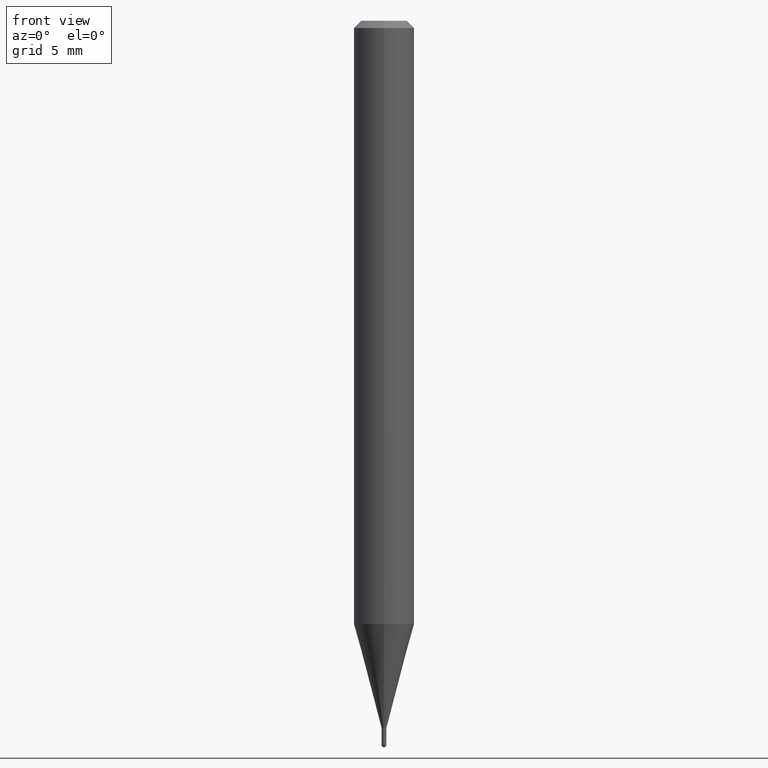
[diagram: clean part render]
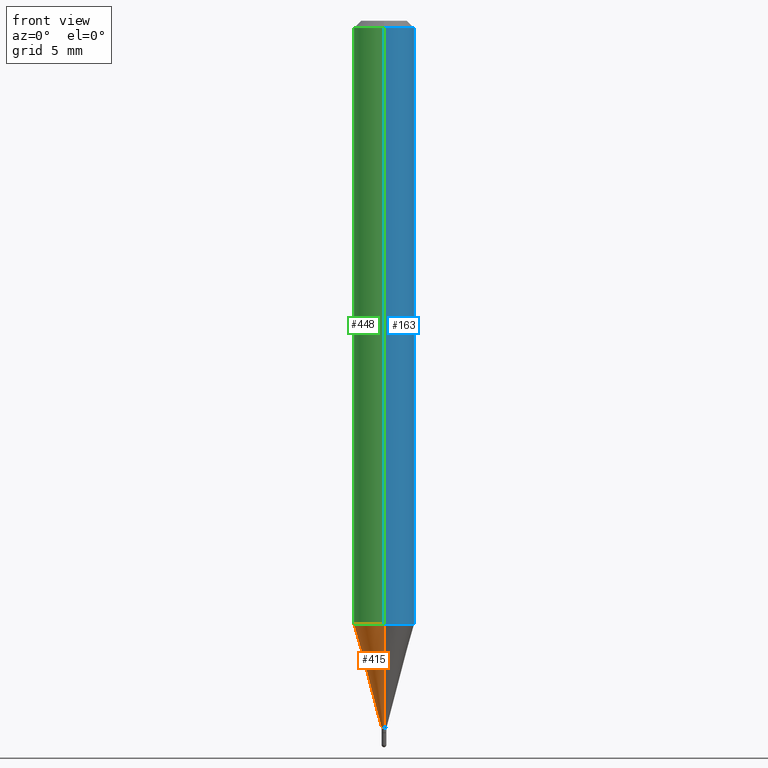
[diagram: same view with three faces highlighted in distinct colors, each labeled with its STEP entity id]
A machine part, front view with three faces highlighted in distinct colors.
Their STEP definitions:

[orange] entity #415 — the highlighted conical surface has half-angle 15 deg.
#2 = DIRECTION ( 'NONE',  ( -2.445665953977767409E-29, 3.491199011983142468E-15, 1.000000000000000000 ) ) ;
#3 = DIRECTION ( 'NONE',  ( -2.445665953977767409E-29, 3.491199011983142468E-15, 1.000000000000000000 ) ) ;
#15 = VECTOR ( 'NONE', #212, 39.37007874015748143 ) ;
#23 = VERTEX_POINT ( 'NONE', #161 ) ;
#40 = EDGE_LOOP ( 'NONE', ( #180, #449, #393, #467 ) ) ;
#65 = LINE ( 'NONE', #74, #372 ) ;
#74 = CARTESIAN_POINT ( 'NONE',  ( 3.552713678804019446E-17, 0.004999999999994829761, -1.459999999999999742 ) ) ;
#75 = EDGE_CURVE ( 'NONE', #416, #446, #160, .T. ) ;
#86 = CIRCLE ( 'NONE', #364, 0.004999999999999927246 ) ;
#94 = CARTESIAN_POINT ( 'NONE',  ( 2.398081733190667635E-16, 0.004999999999994829761, -1.459999999999999742 ) ) ;
#102 = DIRECTION ( 'NONE',  ( 1.839019923739600710E-15, 0.2588190451025250138, 0.9659258262890670910 ) ) ;
#110 = CARTESIAN_POINT ( 'NONE',  ( 3.045849690888821220E-29, -4.347963962202206812E-15, -1.245407078564789716 ) ) ;
#111 = EDGE_CURVE ( 'NONE', #23, #446, #369, .T. ) ;
#160 = CIRCLE ( 'NONE', #377, 0.06250000000000000000 ) ;
#161 = CARTESIAN_POINT ( 'NONE',  ( -3.491481338839511498E-17, -0.005000000000005024731, -1.459999999999999742 ) ) ;
#175 = AXIS2_PLACEMENT_3D ( 'NONE', #266, #349, #435 ) ;
#180 = ORIENTED_EDGE ( 'NONE', *, *, #368, .F. ) ;
#212 = DIRECTION ( 'NONE',  ( -1.807323732225330534E-15, -0.2588190451025182415, 0.9659258262890689783 ) ) ;
#223 = DIRECTION ( 'NONE',  ( -6.982962677686265922E-15, -1.000000000000000000, 0.000000000000000000 ) ) ;
#259 = CARTESIAN_POINT ( 'NONE',  ( -4.364351673553611504E-16, -0.06250000000000434375, -1.245407078564789494 ) ) ;
#260 = VERTEX_POINT ( 'NONE', #94 ) ;
#266 = CARTESIAN_POINT ( 'NONE',  ( 3.570672292807540384E-29, -5.097150557495387435E-15, -1.459999999999999742 ) ) ;
#303 = CONICAL_SURFACE ( 'NONE', #175, 0.004999999999999927246, 0.2617993877991502960 ) ;
#310 = FACE_OUTER_BOUND ( 'NONE', #40, .T. ) ;
#325 = CARTESIAN_POINT ( 'NONE',  ( -3.491481338839511498E-17, -0.005000000000005024731, -1.459999999999999742 ) ) ;
#349 = DIRECTION ( 'NONE',  ( -2.445665953977767409E-29, 3.491199011983142468E-15, 1.000000000000000000 ) ) ;
#364 = AXIS2_PLACEMENT_3D ( 'NONE', #469, #2, #223 ) ;
#368 = EDGE_CURVE ( 'NONE', #260, #416, #65, .T. ) ;
#369 = LINE ( 'NONE', #325, #15 ) ;
#372 = VECTOR ( 'NONE', #102, 39.37007874015748143 ) ;
#375 = EDGE_CURVE ( 'NONE', #260, #23, #86, .T. ) ;
#377 = AXIS2_PLACEMENT_3D ( 'NONE', #110, #3, #398 ) ;
#393 = ORIENTED_EDGE ( 'NONE', *, *, #111, .T. ) ;
#398 = DIRECTION ( 'NONE',  ( -6.982962677686265922E-15, -1.000000000000000000, 4.370956789862821150E-15 ) ) ;
#415 = ADVANCED_FACE ( 'NONE', ( #310 ), #303, .T. ) ;
#416 = VERTEX_POINT ( 'NONE', #504 ) ;
#435 = DIRECTION ( 'NONE',  ( -6.982962677686265922E-15, -1.000000000000000000, 0.000000000000000000 ) ) ;
#446 = VERTEX_POINT ( 'NONE', #259 ) ;
#449 = ORIENTED_EDGE ( 'NONE', *, *, #375, .T. ) ;
#467 = ORIENTED_EDGE ( 'NONE', *, *, #75, .F. ) ;
#469 = CARTESIAN_POINT ( 'NONE',  ( 3.570672292807540384E-29, -5.097150557495387435E-15, -1.459999999999999742 ) ) ;
#504 = CARTESIAN_POINT ( 'NONE',  ( 4.440892098500927901E-16, 0.06249999999999563544, -1.245407078564790160 ) ) ;

[blue] entity #163 — the highlighted cylindrical surface (edge-blend (fillet) strip) has radius 1.5875 mm, axis along (-0, 0, 1).
#27 = DIRECTION ( 'NONE',  ( -6.982962677686265922E-15, -1.000000000000000000, 3.491199011983142468E-15 ) ) ;
#41 = VERTEX_POINT ( 'NONE', #276 ) ;
#44 = CIRCLE ( 'NONE', #404, 0.06250000000000000000 ) ;
#61 = ORIENTED_EDGE ( 'NONE', *, *, #183, .T. ) ;
#77 = AXIS2_PLACEMENT_3D ( 'NONE', #331, #296, #27 ) ;
#82 = EDGE_CURVE ( 'NONE', #446, #503, #438, .T. ) ;
#109 = DIRECTION ( 'NONE',  ( -6.982962677686265922E-15, -1.000000000000000000, 3.483106191921935554E-15 ) ) ;
#142 = EDGE_LOOP ( 'NONE', ( #220, #61, #195, #460 ) ) ;
#163 = ADVANCED_FACE ( 'NONE', ( #408 ), #166, .T. ) ;
#166 = CYLINDRICAL_SURFACE ( 'NONE', #77, 0.06250000000000000000 ) ;
#172 = EDGE_CURVE ( 'NONE', #446, #416, #44, .T. ) ;
#177 = CARTESIAN_POINT ( 'NONE',  ( 4.440892098500625669E-16, 0.06250000000000000000, -2.181999382489464042E-16 ) ) ;
#179 = CARTESIAN_POINT ( 'NONE',  ( 3.045849690888821220E-29, -4.347963962202206812E-15, -1.245407078564789716 ) ) ;
#183 = EDGE_CURVE ( 'NONE', #416, #41, #419, .T. ) ;
#195 = ORIENTED_EDGE ( 'NONE', *, *, #399, .F. ) ;
#199 = DIRECTION ( 'NONE',  ( -2.445665953977767129E-29, 3.491199011983142468E-15, 1.000000000000000000 ) ) ;
#220 = ORIENTED_EDGE ( 'NONE', *, *, #172, .T. ) ;
#257 = DIRECTION ( 'NONE',  ( -6.982962677686265922E-15, -1.000000000000000000, 4.370956789862821150E-15 ) ) ;
#259 = CARTESIAN_POINT ( 'NONE',  ( -4.364351673553611504E-16, -0.06250000000000434375, -1.245407078564789494 ) ) ;
#276 = CARTESIAN_POINT ( 'NONE',  ( 4.440892098500932831E-16, 0.06249999999999995143, -0.01499999999999997863 ) ) ;
#296 = DIRECTION ( 'NONE',  ( -2.445665953977767409E-29, 3.491199011983142468E-15, 1.000000000000000000 ) ) ;
#331 = CARTESIAN_POINT ( 'NONE',  ( 0.000000000000000000, 0.000000000000000000, 0.000000000000000000 ) ) ;
#335 = DIRECTION ( 'NONE',  ( -2.445665953977767129E-29, 3.491199011983142468E-15, 1.000000000000000000 ) ) ;
#347 = DIRECTION ( 'NONE',  ( -2.445665953977767409E-29, 3.491199011983142468E-15, 1.000000000000000000 ) ) ;
#365 = CARTESIAN_POINT ( 'NONE',  ( -4.364351673553912750E-16, -0.06250000000000005551, -0.01499999999999954321 ) ) ;
#376 = DIRECTION ( 'NONE',  ( -2.445665953977767409E-29, 3.491199011983142468E-15, 1.000000000000000000 ) ) ;
#399 = EDGE_CURVE ( 'NONE', #503, #41, #430, .T. ) ;
#404 = AXIS2_PLACEMENT_3D ( 'NONE', #179, #376, #257 ) ;
#408 = FACE_OUTER_BOUND ( 'NONE', #142, .T. ) ;
#412 = VECTOR ( 'NONE', #335, 39.37007874015748143 ) ;
#416 = VERTEX_POINT ( 'NONE', #504 ) ;
#419 = LINE ( 'NONE', #177, #412 ) ;
#430 = CIRCLE ( 'NONE', #452, 0.06250000000000000000 ) ;
#431 = CARTESIAN_POINT ( 'NONE',  ( 3.668498930966592382E-31, -5.236798517974630846E-17, -0.01499999999999976179 ) ) ;
#438 = LINE ( 'NONE', #475, #476 ) ;
#446 = VERTEX_POINT ( 'NONE', #259 ) ;
#452 = AXIS2_PLACEMENT_3D ( 'NONE', #431, #347, #109 ) ;
#460 = ORIENTED_EDGE ( 'NONE', *, *, #82, .F. ) ;
#475 = CARTESIAN_POINT ( 'NONE',  ( -4.364351673553916201E-16, -0.06250000000000000000, 2.181999382489464042E-16 ) ) ;
#476 = VECTOR ( 'NONE', #199, 39.37007874015748143 ) ;
#503 = VERTEX_POINT ( 'NONE', #365 ) ;
#504 = CARTESIAN_POINT ( 'NONE',  ( 4.440892098500927901E-16, 0.06249999999999563544, -1.245407078564790160 ) ) ;

[green] entity #448 — the highlighted cylindrical surface (edge-blend (fillet) strip) has radius 1.5875 mm, axis along (-0, 0, 1).
#1 = DIRECTION ( 'NONE',  ( -2.445665953977767409E-29, 3.491199011983142468E-15, 1.000000000000000000 ) ) ;
#3 = DIRECTION ( 'NONE',  ( -2.445665953977767409E-29, 3.491199011983142468E-15, 1.000000000000000000 ) ) ;
#4 = EDGE_CURVE ( 'NONE', #41, #503, #116, .T. ) ;
#37 = DIRECTION ( 'NONE',  ( -6.982962677686265922E-15, -1.000000000000000000, 3.491199011983142468E-15 ) ) ;
#41 = VERTEX_POINT ( 'NONE', #276 ) ;
#75 = EDGE_CURVE ( 'NONE', #416, #446, #160, .T. ) ;
#81 = CARTESIAN_POINT ( 'NONE',  ( 3.668498930966592382E-31, -5.236798517974630846E-17, -0.01499999999999976179 ) ) ;
#82 = EDGE_CURVE ( 'NONE', #446, #503, #438, .T. ) ;
#91 = AXIS2_PLACEMENT_3D ( 'NONE', #81, #1, #480 ) ;
#110 = CARTESIAN_POINT ( 'NONE',  ( 3.045849690888821220E-29, -4.347963962202206812E-15, -1.245407078564789716 ) ) ;
#116 = CIRCLE ( 'NONE', #91, 0.06250000000000000000 ) ;
#131 = ORIENTED_EDGE ( 'NONE', *, *, #4, .F. ) ;
#146 = ORIENTED_EDGE ( 'NONE', *, *, #75, .T. ) ;
#160 = CIRCLE ( 'NONE', #377, 0.06250000000000000000 ) ;
#177 = CARTESIAN_POINT ( 'NONE',  ( 4.440892098500625669E-16, 0.06250000000000000000, -2.181999382489464042E-16 ) ) ;
#183 = EDGE_CURVE ( 'NONE', #416, #41, #419, .T. ) ;
#188 = DIRECTION ( 'NONE',  ( -2.445665953977767409E-29, 3.491199011983142468E-15, 1.000000000000000000 ) ) ;
#199 = DIRECTION ( 'NONE',  ( -2.445665953977767129E-29, 3.491199011983142468E-15, 1.000000000000000000 ) ) ;
#227 = CYLINDRICAL_SURFACE ( 'NONE', #488, 0.06250000000000000000 ) ;
#259 = CARTESIAN_POINT ( 'NONE',  ( -4.364351673553611504E-16, -0.06250000000000434375, -1.245407078564789494 ) ) ;
#273 = ORIENTED_EDGE ( 'NONE', *, *, #183, .F. ) ;
#276 = CARTESIAN_POINT ( 'NONE',  ( 4.440892098500932831E-16, 0.06249999999999995143, -0.01499999999999997863 ) ) ;
#335 = DIRECTION ( 'NONE',  ( -2.445665953977767129E-29, 3.491199011983142468E-15, 1.000000000000000000 ) ) ;
#365 = CARTESIAN_POINT ( 'NONE',  ( -4.364351673553912750E-16, -0.06250000000000005551, -0.01499999999999954321 ) ) ;
#377 = AXIS2_PLACEMENT_3D ( 'NONE', #110, #3, #398 ) ;
#392 = FACE_OUTER_BOUND ( 'NONE', #462, .T. ) ;
#398 = DIRECTION ( 'NONE',  ( -6.982962677686265922E-15, -1.000000000000000000, 4.370956789862821150E-15 ) ) ;
#412 = VECTOR ( 'NONE', #335, 39.37007874015748143 ) ;
#416 = VERTEX_POINT ( 'NONE', #504 ) ;
#419 = LINE ( 'NONE', #177, #412 ) ;
#425 = CARTESIAN_POINT ( 'NONE',  ( 0.000000000000000000, 0.000000000000000000, 0.000000000000000000 ) ) ;
#438 = LINE ( 'NONE', #475, #476 ) ;
#446 = VERTEX_POINT ( 'NONE', #259 ) ;
#448 = ADVANCED_FACE ( 'NONE', ( #392 ), #227, .T. ) ;
#462 = EDGE_LOOP ( 'NONE', ( #273, #146, #483, #131 ) ) ;
#475 = CARTESIAN_POINT ( 'NONE',  ( -4.364351673553916201E-16, -0.06250000000000000000, 2.181999382489464042E-16 ) ) ;
#476 = VECTOR ( 'NONE', #199, 39.37007874015748143 ) ;
#480 = DIRECTION ( 'NONE',  ( -6.982962677686265922E-15, -1.000000000000000000, 3.483106191921935554E-15 ) ) ;
#483 = ORIENTED_EDGE ( 'NONE', *, *, #82, .T. ) ;
#488 = AXIS2_PLACEMENT_3D ( 'NONE', #425, #188, #37 ) ;
#503 = VERTEX_POINT ( 'NONE', #365 ) ;
#504 = CARTESIAN_POINT ( 'NONE',  ( 4.440892098500927901E-16, 0.06249999999999563544, -1.245407078564790160 ) ) ;